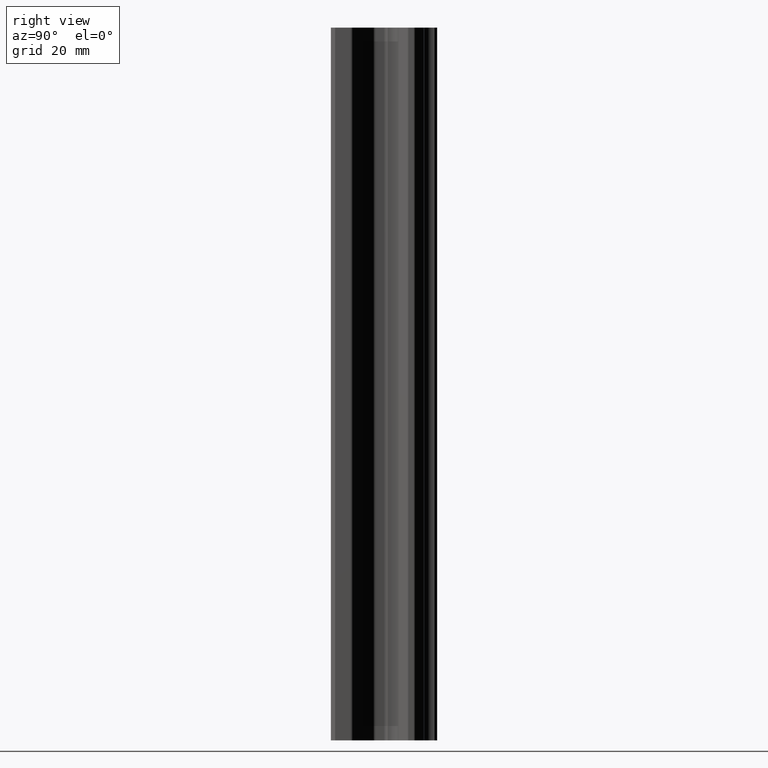
[diagram: clean part render]
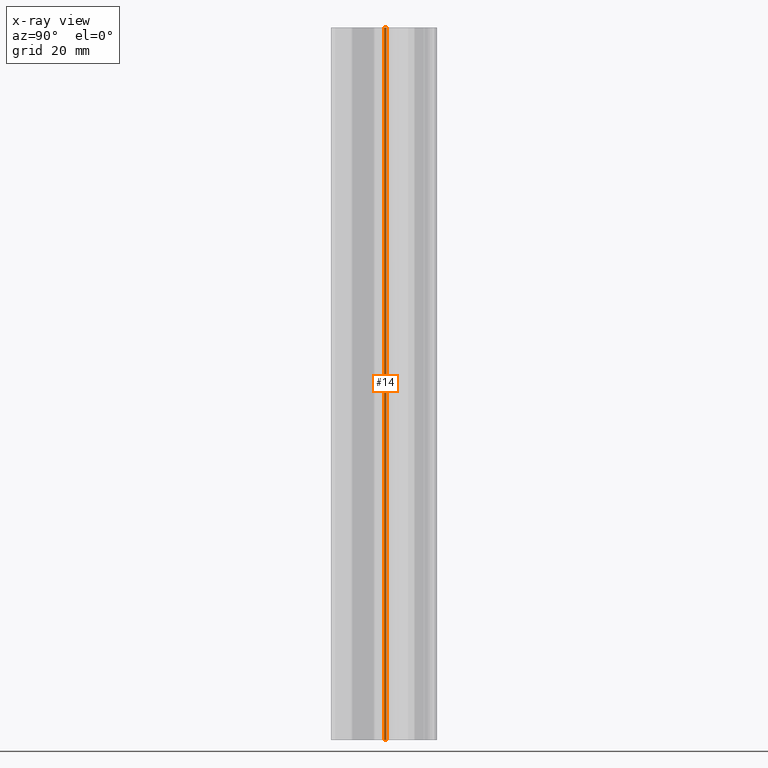
[diagram: x-ray — body ghosted, one internal face saturated and labeled with its STEP entity id]
A machine part, right view, then the same camera in x-ray: the body is ghosted and one INTERNAL B-rep face — a face not visible from any outside direction — is saturated and labeled: STEP entity #14.
In plain terms, the highlighted cylindrical surface (edge-blend (fillet) strip) has radius 1.2 mm, axis along (0, 0, 1).
Its self-contained STEP definition (entity closure, byte-faithful):
#10 = VERTEX_POINT ( 'NONE', #752 ) ;
#11 = EDGE_CURVE ( 'NONE', #26, #141, #750, .T. ) ;
#14 = ADVANCED_FACE ( 'NONE', ( #583 ), #581, .F. ) ;
#15 = EDGE_LOOP ( 'NONE', ( #20, #25, #24, #27 ) ) ;
#16 = EDGE_CURVE ( 'NONE', #144, #10, #577, .T. ) ;
#20 = ORIENTED_EDGE ( 'NONE', *, *, #16, .F. ) ;
#24 = ORIENTED_EDGE ( 'NONE', *, *, #11, .F. ) ;
#25 = ORIENTED_EDGE ( 'NONE', *, *, #143, .F. ) ;
#26 = VERTEX_POINT ( 'NONE', #562 ) ;
#27 = ORIENTED_EDGE ( 'NONE', *, *, #28, .F. ) ;
#28 = EDGE_CURVE ( 'NONE', #10, #26, #561, .T. ) ;
#141 = VERTEX_POINT ( 'NONE', #828 ) ;
#143 = EDGE_CURVE ( 'NONE', #141, #144, #827, .T. ) ;
#144 = VERTEX_POINT ( 'NONE', #893 ) ;
#558 = DIRECTION ( 'NONE',  ( 0.0000000000000000000, 0.0000000000000000000, -1.000000000000000000 ) ) ;
#559 = VECTOR ( 'NONE', #558, 1000.000000000000000 ) ;
#560 = CARTESIAN_POINT ( 'NONE',  ( -14.50000000000000000, -18.99743427485000100, -127.5000000000000000 ) ) ;
#561 = LINE ( 'NONE', #560, #559 ) ;
#562 = CARTESIAN_POINT ( 'NONE',  ( -14.50000000000000000, -18.99743427485000100, -127.5000000000000000 ) ) ;
#573 = DIRECTION ( 'NONE',  ( 1.000000000000000000, -2.891205793294679000E-015, 0.0000000000000000000 ) ) ;
#574 = DIRECTION ( 'NONE',  ( 0.0000000000000000000, 0.0000000000000000000, -1.000000000000000000 ) ) ;
#575 = CARTESIAN_POINT ( 'NONE',  ( -15.69999999999999900, -18.99743427485000100, 127.5000000000000000 ) ) ;
#576 = AXIS2_PLACEMENT_3D ( 'NONE', #575, #574, #573 ) ;
#577 = CIRCLE ( 'NONE', #576, 1.199999999999999700 ) ;
#578 = DIRECTION ( 'NONE',  ( 1.000000000000000000, 0.0000000000000000000, 0.0000000000000000000 ) ) ;
#579 = DIRECTION ( 'NONE',  ( 0.0000000000000000000, 0.0000000000000000000, 1.000000000000000000 ) ) ;
#580 = AXIS2_PLACEMENT_3D ( 'NONE', #582, #579, #578 ) ;
#581 = CYLINDRICAL_SURFACE ( 'NONE', #580, 1.199999999999999700 ) ;
#582 = CARTESIAN_POINT ( 'NONE',  ( -15.69999999999999900, -18.99743427485000100, -127.5000000000000000 ) ) ;
#583 = FACE_OUTER_BOUND ( 'NONE', #15, .T. ) ;
#746 = DIRECTION ( 'NONE',  ( 1.000000000000000000, 0.0000000000000000000, 0.0000000000000000000 ) ) ;
#747 = DIRECTION ( 'NONE',  ( 0.0000000000000000000, 0.0000000000000000000, 1.000000000000000000 ) ) ;
#748 = CARTESIAN_POINT ( 'NONE',  ( -15.69999999999999900, -18.99743427485000100, -127.5000000000000000 ) ) ;
#749 = AXIS2_PLACEMENT_3D ( 'NONE', #748, #747, #746 ) ;
#750 = CIRCLE ( 'NONE', #749, 1.199999999999999700 ) ;
#752 = CARTESIAN_POINT ( 'NONE',  ( -14.50000000000000000, -18.99743427485000100, 127.5000000000000000 ) ) ;
#824 = DIRECTION ( 'NONE',  ( 0.0000000000000000000, 0.0000000000000000000, 1.000000000000000000 ) ) ;
#825 = VECTOR ( 'NONE', #824, 1000.000000000000000 ) ;
#826 = CARTESIAN_POINT ( 'NONE',  ( -14.85147186258114300, -18.14890613742114300, -127.5000000000000000 ) ) ;
#827 = LINE ( 'NONE', #826, #825 ) ;
#828 = CARTESIAN_POINT ( 'NONE',  ( -14.85147186257811000, -18.14890613742293400, -127.5000000000000000 ) ) ;
#893 = CARTESIAN_POINT ( 'NONE',  ( -14.85147186257811000, -18.14890613742293400, 127.5000000000000000 ) ) ;